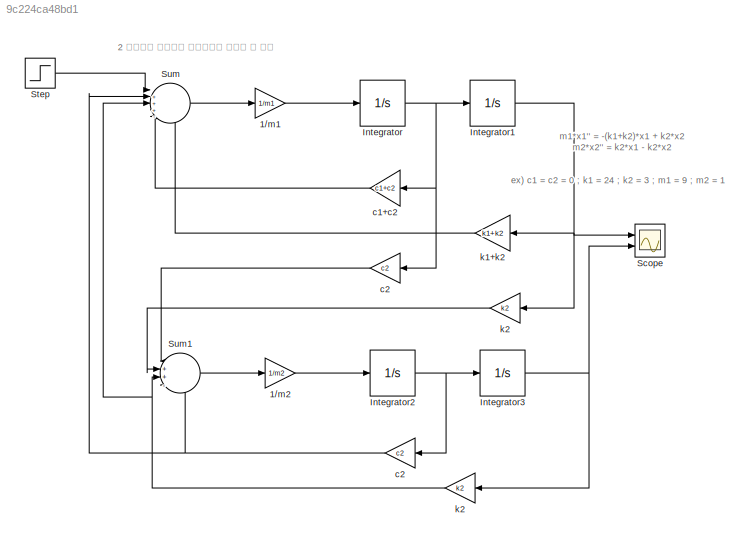
MODEL slx_9c224ca48bd1
KIND model
BLOCK [Gain] 1//m1
  Gain = 1/m1
  OutDataTypeStr = Inherit: Inherit via internal rule
  ParamDataTypeStr = Inherit: Inherit via internal rule
  SaturateOnIntegerOverflow = off
BLOCK [Gain] 1//m2
  Gain = 1/m2
  OutDataTypeStr = Inherit: Inherit via internal rule
  ParamDataTypeStr = Inherit: Inherit via internal rule
  SaturateOnIntegerOverflow = off
BLOCK [Integrator] Integrator
  Ports = [1, 1]
BLOCK [Integrator] Integrator1
  InitialCondition = 1
  Ports = [1, 1]
BLOCK [Integrator] Integrator2
  Ports = [1, 1]
BLOCK [Integrator] Integrator3
  Ports = [1, 1]
BLOCK [Scope] Scope
  DataFormat = StructureWithTime
  Floating = off
  NumInputPorts = 2
  Ports = [2]
  SampleTime = 0
  ShowLegends = off
  YMax = 5~5
  YMin = -5~-5
BLOCK [Step] Step
  SampleTime = 0
  Time = 0
BLOCK [Sum] Sum
  IconShape = round
  InputSameDT = off
  Inputs = |+++--
  OutDataTypeStr = Inherit: Inherit via internal rule
  Ports = [5, 1]
  SaturateOnIntegerOverflow = off
BLOCK [Sum] Sum1
  IconShape = round
  InputSameDT = off
  Inputs = |++--
  OutDataTypeStr = Inherit: Inherit via internal rule
  Ports = [4, 1]
  SaturateOnIntegerOverflow = off
BLOCK [Gain] c1+c2
  Gain = c1+c2
  OutDataTypeStr = Inherit: Inherit via internal rule
  ParamDataTypeStr = Inherit: Inherit via internal rule
  SaturateOnIntegerOverflow = off
BLOCK [Gain] c2
  Gain = c2
  OutDataTypeStr = Inherit: Inherit via internal rule
  ParamDataTypeStr = Inherit: Inherit via internal rule
  SaturateOnIntegerOverflow = off
BLOCK [Gain] c2 
  Gain = c2
  OutDataTypeStr = Inherit: Inherit via internal rule
  ParamDataTypeStr = Inherit: Inherit via internal rule
  SaturateOnIntegerOverflow = off
BLOCK [Gain] k1+k2
  Gain = k1+k2
  OutDataTypeStr = Inherit: Inherit via internal rule
  ParamDataTypeStr = Inherit: Inherit via internal rule
  SaturateOnIntegerOverflow = off
BLOCK [Gain] k2
  Gain = k2
  OutDataTypeStr = Inherit: Inherit via internal rule
  ParamDataTypeStr = Inherit: Inherit via internal rule
  SaturateOnIntegerOverflow = off
BLOCK [Gain] k2 
  Gain = k2
  OutDataTypeStr = Inherit: Inherit via internal rule
  ParamDataTypeStr = Inherit: Inherit via internal rule
  SaturateOnIntegerOverflow = off
ANNOTATION (root): 2 자유도계 시스템을 블록선도로 표현해 본 모습
ANNOTATION (root): ex) c1 = c2 = 0 ; k1 = 24 ; k2 = 3 ; m1 = 9 ; m2 = 1
ANNOTATION (root): m1*x1'' = -(k1+k2)*x1 + k2*x2 m2*x2'' = k2*x1 - k2*x2
LINE 1//m1:1 -> Integrator:1
LINE 1//m2:1 -> Integrator2:1
NET Integrator1:1 -> Scope:1, k1+k2:1, k2 :1
NET Integrator2:1 -> Integrator3:1, c2:1
NET Integrator3:1 -> Scope:2, k2:1
NET Integrator:1 -> Integrator1:1, c1+c2:1, c2 :1
LINE Step:1 -> Sum:1
LINE Sum1:1 -> 1//m2:1
LINE Sum:1 -> 1//m1:1
LINE c1+c2:1 -> Sum:4
LINE c2 :1 -> Sum1:1
NET c2:1 -> Sum1:4, Sum:2
LINE k1+k2:1 -> Sum:5
LINE k2 :1 -> Sum1:2
NET k2:1 -> Sum1:3, Sum:3
note: NET lines group one-source signal fan-out (src -> all destinations, sorted); 1:1 wires keep LINE
